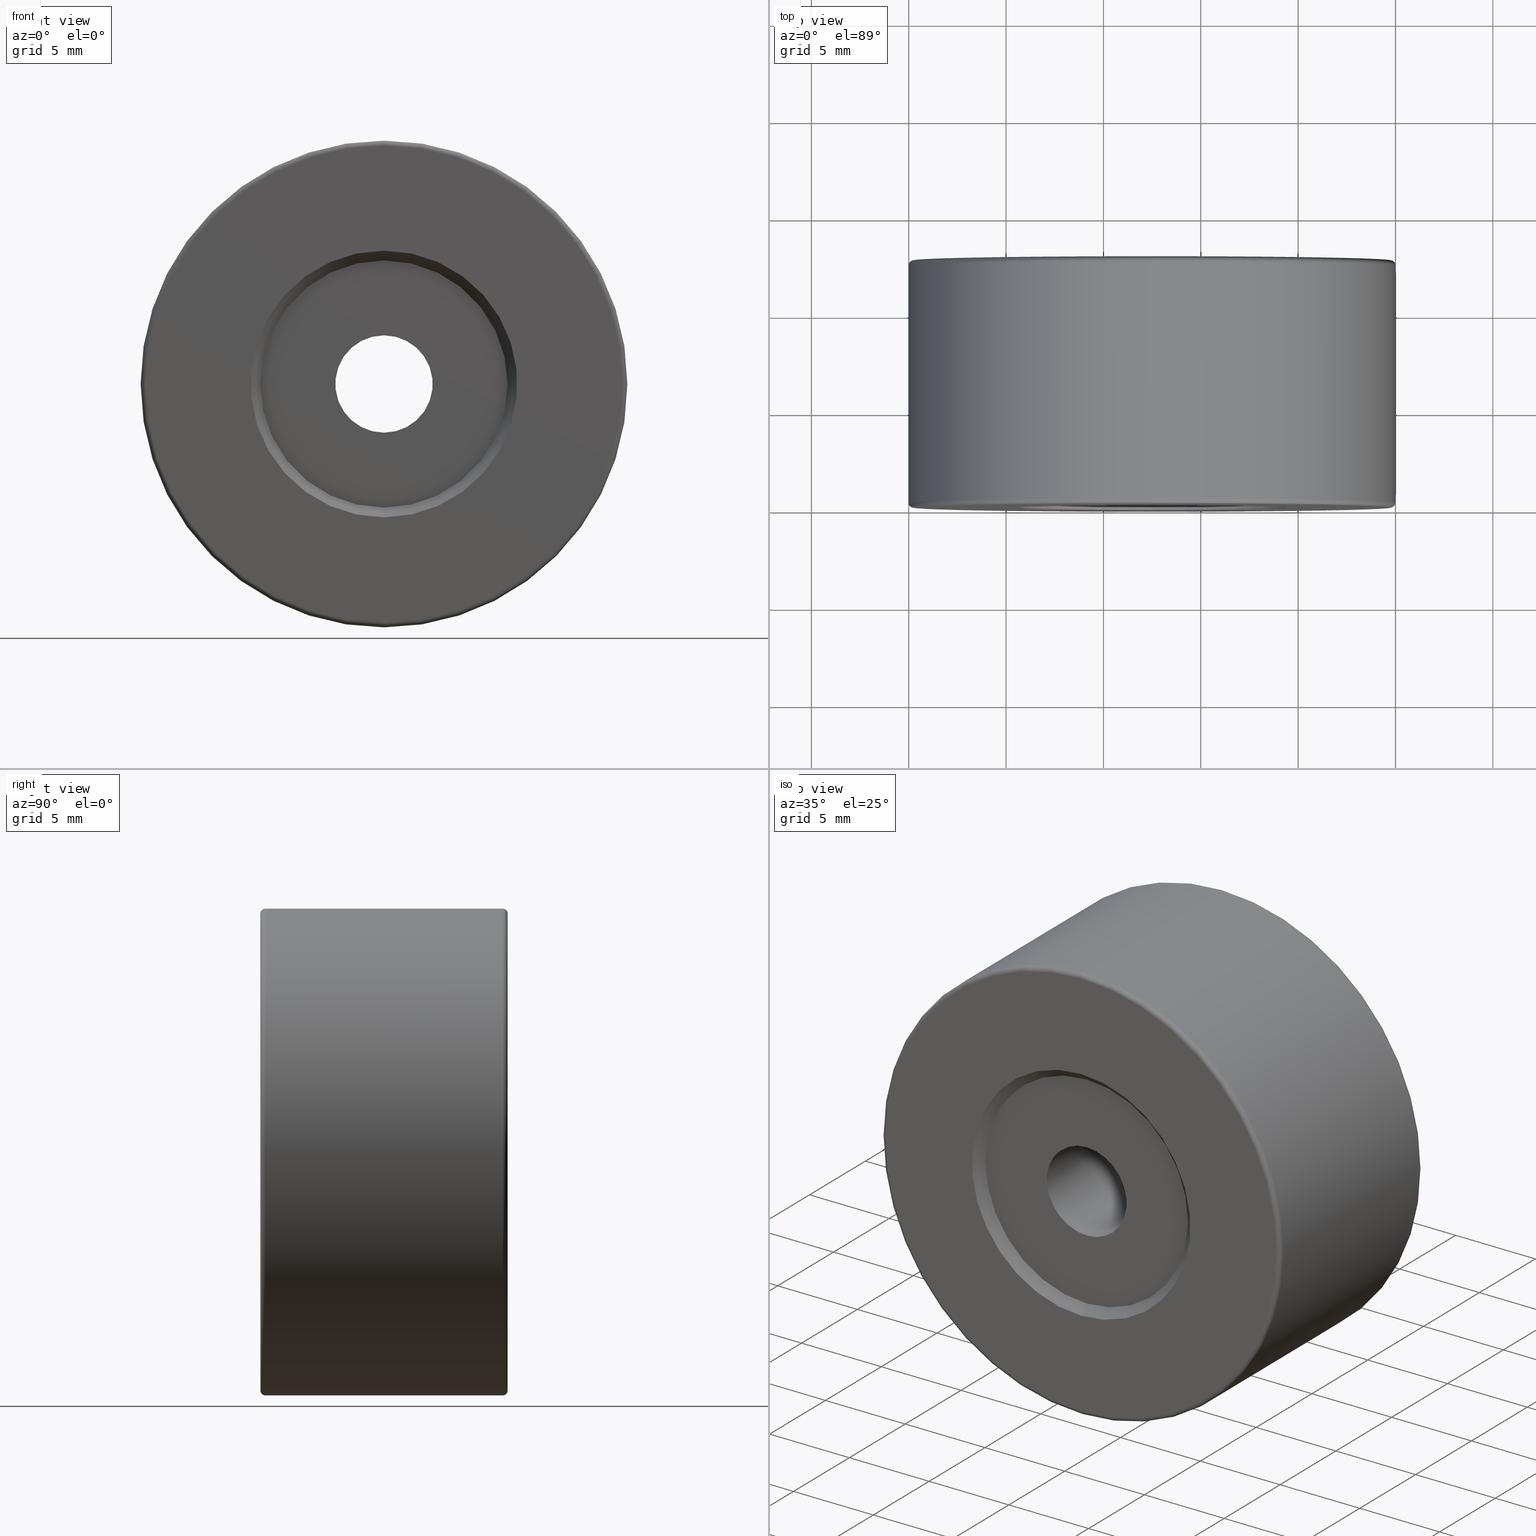
[diagram: canonical four-view strip — front | top / right | iso, engineering-drawing reading convention]
A machine part, canonical four-view strip (front | top / right | iso — engineering-drawing reading convention). The complete STEP part file that produces these views, byte-faithful:
ISO-10303-21;
HEADER;
FILE_DESCRIPTION (( 'STEP AP203' ),
    '1' );
FILE_NAME ('1.4.2.29_ZGH-25-0.5.STEP',
    '2022-04-14T00:09:37',
    ( '' ),
    ( '' ),
    'SwSTEP 2.0',
    'SolidWorks 2021',
    '' );
FILE_SCHEMA (( 'CONFIG_CONTROL_DESIGN' ));
ENDSEC;

DATA;
#1 = ORIENTED_EDGE ( 'NONE', *, *, #139, .T. ) ;
#2 = VERTEX_POINT ( 'NONE', #131 ) ;
#3 = ORIENTED_EDGE ( 'NONE', *, *, #251, .T. ) ;
#4 = DATE_AND_TIME ( #193, #574 ) ;
#5 = ORIENTED_EDGE ( 'NONE', *, *, #81, .T. ) ;
#6 = PERSON_AND_ORGANIZATION_ROLE ( 'classification_officer' ) ;
#7 = CIRCLE ( 'NONE', #351, 1.649999999999998579 ) ;
#8 = EDGE_CURVE ( 'NONE', #413, #174, #272, .T. ) ;
#9 = ORIENTED_EDGE ( 'NONE', *, *, #156, .F. ) ;
#10 = DIRECTION ( 'NONE',  ( 0.0000000000000000000, 0.0000000000000000000, 1.000000000000000000 ) ) ;
#11 = CARTESIAN_POINT ( 'NONE',  ( -22.50520183104453409, 7.748252184769388151, 56.85000000000000853 ) ) ;
#12 = UNCERTAINTY_MEASURE_WITH_UNIT (LENGTH_MEASURE( 1.000000000000000082E-05 ), #296, 'distance_accuracy_value', 'NONE');
#13 = DIRECTION ( 'NONE',  ( 0.0000000000000000000, 1.000000000000000000, 0.0000000000000000000 ) ) ;
#14 = DIRECTION ( 'NONE',  ( 0.0000000000000000000, 0.0000000000000000000, 1.000000000000000000 ) ) ;
#15 = CARTESIAN_POINT ( 'NONE',  ( -22.50520183104453409, -4.451747815230611138, 50.00000000000000000 ) ) ;
#16 = CIRCLE ( 'NONE', #318, 2.499999999999995115 ) ;
#17 = CIRCLE ( 'NONE', #402, 6.850000000000008527 ) ;
#18 = EDGE_CURVE ( 'NONE', #269, #138, #393, .T. ) ;
#19 = DIRECTION ( 'NONE',  ( 0.0000000000000000000, 0.0000000000000000000, 1.000000000000000000 ) ) ;
#20 = AXIS2_PLACEMENT_3D ( 'NONE', #514, #58, #279 ) ;
#21 = LINE ( 'NONE', #56, #271 ) ;
#22 = ORIENTED_EDGE ( 'NONE', *, *, #513, .F. ) ;
#23 = DIRECTION ( 'NONE',  ( -0.0000000000000000000, -1.000000000000000000, -0.0000000000000000000 ) ) ;
#24 = CARTESIAN_POINT ( 'NONE',  ( -22.50520183104453409, 7.248252184769383710, 56.35000000000000142 ) ) ;
#25 = ADVANCED_FACE ( 'NONE', ( #126 ), #299, .F. ) ;
#26 = CC_DESIGN_APPROVAL ( #467, ( #163 ) ) ;
#27 = DIRECTION ( 'NONE',  ( 0.0000000000000000000, 0.0000000000000000000, 1.000000000000000000 ) ) ;
#28 = FACE_OUTER_BOUND ( 'NONE', #571, .T. ) ;
#29 = CARTESIAN_POINT ( 'NONE',  ( -22.50520183104453409, -4.951747815230611138, 50.00000000000000000 ) ) ;
#30 = ORIENTED_EDGE ( 'NONE', *, *, #8, .T. ) ;
#31 = CIRCLE ( 'NONE', #364, 6.850000000000008527 ) ;
#32 = DIRECTION ( 'NONE',  ( -0.0000000000000000000, -1.000000000000000000, -0.0000000000000000000 ) ) ;
#33 = VERTEX_POINT ( 'NONE', #228 ) ;
#34 = DIRECTION ( 'NONE',  ( -0.0000000000000000000, -1.000000000000000000, -0.0000000000000000000 ) ) ;
#35 = FACE_OUTER_BOUND ( 'NONE', #430, .T. ) ;
#36 = CARTESIAN_POINT ( 'NONE',  ( -22.50520183104453409, 7.748252184769388151, 48.35000000000000142 ) ) ;
#37 = AXIS2_PLACEMENT_3D ( 'NONE', #477, #76, #292 ) ;
#38 = DIRECTION ( 'NONE',  ( 0.0000000000000000000, 1.000000000000000000, 0.0000000000000000000 ) ) ;
#39 = DIRECTION ( 'NONE',  ( 0.0000000000000000000, -0.0000000000000000000, 1.000000000000000000 ) ) ;
#40 = EDGE_LOOP ( 'NONE', ( #100, #548, #45, #186 ) ) ;
#41 = APPLICATION_PROTOCOL_DEFINITION ( 'international standard', 'config_control_design', 1994, #194 ) ;
#42 = AXIS2_PLACEMENT_3D ( 'NONE', #171, #482, #39 ) ;
#43 = EDGE_LOOP ( 'NONE', ( #352, #1 ) ) ;
#44 = MECHANICAL_CONTEXT ( 'NONE', #194, 'mechanical' ) ;
#45 = ORIENTED_EDGE ( 'NONE', *, *, #115, .T. ) ;
#46 = EDGE_CURVE ( 'NONE', #51, #191, #80, .T. ) ;
#47 = EDGE_LOOP ( 'NONE', ( #313, #257, #322, #278 ) ) ;
#48 = AXIS2_PLACEMENT_3D ( 'NONE', #52, #196, #150 ) ;
#49 = CIRCLE ( 'NONE', #555, 6.850000000000008527 ) ;
#50 = PERSON_AND_ORGANIZATION_ROLE ( 'creator' ) ;
#51 = VERTEX_POINT ( 'NONE', #490 ) ;
#52 = CARTESIAN_POINT ( 'NONE',  ( -22.50520183104453409, -4.951747815230611138, 50.00000000000000000 ) ) ;
#53 = ADVANCED_FACE ( 'NONE', ( #267 ), #350, .T. ) ;
#54 = ORIENTED_EDGE ( 'NONE', *, *, #470, .T. ) ;
#55 = VERTEX_POINT ( 'NONE', #77 ) ;
#56 = CARTESIAN_POINT ( 'NONE',  ( -22.50520183104453409, 7.748252184769388151, 62.50000000000000000 ) ) ;
#57 = LOCAL_TIME ( 8, 9, 37.00000000000000000, #92 ) ;
#58 = DIRECTION ( 'NONE',  ( -0.0000000000000000000, -1.000000000000000000, -0.0000000000000000000 ) ) ;
#59 = LINE ( 'NONE', #202, #248 ) ;
#60 = DIRECTION ( 'NONE',  ( 0.0000000000000000000, 0.0000000000000000000, 1.000000000000000000 ) ) ;
#61 = DIRECTION ( 'NONE',  ( -0.0000000000000000000, -1.000000000000000000, -0.0000000000000000000 ) ) ;
#62 = CIRCLE ( 'NONE', #371, 0.2500000000000002220 ) ;
#63 = DIRECTION ( 'NONE',  ( 8.659560562354955045E-17, 0.7071067811865456854, -0.7071067811865493491 ) ) ;
#64 = AXIS2_PLACEMENT_3D ( 'NONE', #252, #516, #508 ) ;
#65 = AXIS2_PLACEMENT_3D ( 'NONE', #472, #473, #221 ) ;
#66 = ADVANCED_FACE ( 'NONE', ( #396 ), #573, .T. ) ;
#67 = DIRECTION ( 'NONE',  ( 1.000000000000000000, -0.0000000000000000000, 1.224646799147353207E-16 ) ) ;
#68 = ADVANCED_FACE ( 'NONE', ( #442, #35 ), #222, .T. ) ;
#69 = DIRECTION ( 'NONE',  ( -0.0000000000000000000, -1.000000000000000000, -0.0000000000000000000 ) ) ;
#70 = CIRCLE ( 'NONE', #48, 6.850000000000008527 ) ;
#71 = CIRCLE ( 'NONE', #329, 6.350000000000001421 ) ;
#72 = AXIS2_PLACEMENT_3D ( 'NONE', #337, #38, #395 ) ;
#73 = DIRECTION ( 'NONE',  ( -0.0000000000000000000, -1.000000000000000000, -0.0000000000000000000 ) ) ;
#74 = ORIENTED_EDGE ( 'NONE', *, *, #551, .F. ) ;
#75 = CARTESIAN_POINT ( 'NONE',  ( -22.50520183104453409, 7.248252184769387263, 48.35000000000000142 ) ) ;
#76 = DIRECTION ( 'NONE',  ( -0.0000000000000000000, 1.000000000000000000, -0.0000000000000000000 ) ) ;
#77 = CARTESIAN_POINT ( 'NONE',  ( -22.50520183104453409, 7.248252184769387263, 56.35000000000000142 ) ) ;
#78 = SHELL_BASED_SURFACE_MODEL ( 'NONE', ( #401 ) );
#79 = EDGE_LOOP ( 'NONE', ( #144, #453 ) ) ;
#80 = LINE ( 'NONE', #36, #455 ) ;
#81 = EDGE_CURVE ( 'NONE', #213, #404, #529, .T. ) ;
#82 = DIRECTION ( 'NONE',  ( 0.0000000000000000000, 1.000000000000000000, 0.0000000000000000000 ) ) ;
#83 = DIRECTION ( 'NONE',  ( 0.0000000000000000000, 0.0000000000000000000, -1.000000000000000000 ) ) ;
#84 = ORIENTED_EDGE ( 'NONE', *, *, #139, .F. ) ;
#85 = AXIS2_PLACEMENT_3D ( 'NONE', #441, #73, #253 ) ;
#86 = CALENDAR_DATE ( 2022, 14, 4 ) ;
#87 = CYLINDRICAL_SURFACE ( 'NONE', #397, 1.649999999999998579 ) ;
#88 = ORIENTED_EDGE ( 'NONE', *, *, #354, .F. ) ;
#89 = PERSON_AND_ORGANIZATION_ROLE ( 'design_supplier' ) ;
#90 = VERTEX_POINT ( 'NONE', #177 ) ;
#91 = ORIENTED_EDGE ( 'NONE', *, *, #245, .T. ) ;
#92 = COORDINATED_UNIVERSAL_TIME_OFFSET ( 8, 0, .AHEAD. ) ;
#93 = CALENDAR_DATE ( 2022, 14, 4 ) ;
#94 = CC_DESIGN_PERSON_AND_ORGANIZATION_ASSIGNMENT ( #368, #89, ( #446 ) ) ;
#95 = ORIENTED_EDGE ( 'NONE', *, *, #407, .F. ) ;
#96 = ORIENTED_EDGE ( 'NONE', *, *, #513, .T. ) ;
#97 = VECTOR ( 'NONE', #63, 1000.000000000000000 ) ;
#98 = AXIS2_PLACEMENT_3D ( 'NONE', #301, #496, #487 ) ;
#99 = TOROIDAL_SURFACE ( 'NONE', #175, 12.25000000000000000, 0.2500000000000000000 ) ;
#100 = ORIENTED_EDGE ( 'NONE', *, *, #530, .T. ) ;
#101 = ADVANCED_FACE ( 'NONE', ( #306 ), #128, .F. ) ;
#102 = ORIENTED_EDGE ( 'NONE', *, *, #251, .F. ) ;
#103 = AXIS2_PLACEMENT_3D ( 'NONE', #383, #420, #158 ) ;
#104 = PLANE ( 'NONE',  #349 ) ;
#105 = DIRECTION ( 'NONE',  ( -0.0000000000000000000, -1.000000000000000000, -0.0000000000000000000 ) ) ;
#106 = DIRECTION ( 'NONE',  ( 0.0000000000000000000, 0.0000000000000000000, -1.000000000000000000 ) ) ;
#107 = CIRCLE ( 'NONE', #274, 1.649999999999998579 ) ;
#108 = CARTESIAN_POINT ( 'NONE',  ( -22.50520183104453409, -4.451747815230611138, 47.50000000000000711 ) ) ;
#109 = ADVANCED_FACE ( 'NONE', ( #303 ), #399, .F. ) ;
#110 = AXIS2_PLACEMENT_3D ( 'NONE', #330, #463, #380 ) ;
#111 = PRODUCT_DEFINITION_SHAPE ( 'NONE', 'NONE',  #118 ) ;
#112 = DIRECTION ( 'NONE',  ( 0.0000000000000000000, -0.7071067811865493491, -0.7071067811865456854 ) ) ;
#113 = DIRECTION ( 'NONE',  ( 0.0000000000000000000, 0.0000000000000000000, -1.000000000000000000 ) ) ;
#114 = CC_DESIGN_APPROVAL ( #342, ( #118 ) ) ;
#115 = EDGE_CURVE ( 'NONE', #136, #180, #382, .T. ) ;
#116 = CARTESIAN_POINT ( 'NONE',  ( -22.50520183104453409, 7.498252184769387263, 37.75000000000000711 ) ) ;
#117 = ORIENTED_EDGE ( 'NONE', *, *, #340, .F. ) ;
#118 = PRODUCT_DEFINITION ( 'δ֪', '', #446, #324 ) ;
#119 = DIRECTION ( 'NONE',  ( 0.0000000000000000000, 0.0000000000000000000, 1.000000000000000000 ) ) ;
#120 = DIRECTION ( 'NONE',  ( 0.0000000000000000000, 0.7071067811865456854, 0.7071067811865493491 ) ) ;
#121 = CIRCLE ( 'NONE', #103, 2.499999999999995115 ) ;
#122 = ORIENTED_EDGE ( 'NONE', *, *, #46, .T. ) ;
#123 = AXIS2_PLACEMENT_3D ( 'NONE', #289, #258, #579 ) ;
#124 = CIRCLE ( 'NONE', #204, 0.2500000000000002220 ) ;
#125 = AXIS2_PLACEMENT_3D ( 'NONE', #346, #82, #119 ) ;
#126 = FACE_OUTER_BOUND ( 'NONE', #185, .T. ) ;
#127 = DIRECTION ( 'NONE',  ( 0.0000000000000000000, 0.0000000000000000000, 1.000000000000000000 ) ) ;
#128 = CYLINDRICAL_SURFACE ( 'NONE', #214, 2.499999999999995115 ) ;
#129 = EDGE_CURVE ( 'NONE', #235, #51, #484, .T. ) ;
#130 = ORIENTED_EDGE ( 'NONE', *, *, #181, .F. ) ;
#131 = CARTESIAN_POINT ( 'NONE',  ( -22.50520183104453409, 7.498252184769387263, 62.50000000000000000 ) ) ;
#132 = MANIFOLD_SURFACE_SHAPE_REPRESENTATION ( '1.4.2.29_ZGH-25-0.5', ( #78, #188 ), #288 ) ;
#133 = FACE_BOUND ( 'NONE', #43, .T. ) ;
#134 = CIRCLE ( 'NONE', #110, 0.2500000000000002220 ) ;
#135 = DIRECTION ( 'NONE',  ( 0.0000000000000000000, 0.0000000000000000000, 1.000000000000000000 ) ) ;
#136 = VERTEX_POINT ( 'NONE', #201 ) ;
#137 = DIRECTION ( 'NONE',  ( 1.000000000000000000, 0.0000000000000000000, 0.0000000000000000000 ) ) ;
#138 = VERTEX_POINT ( 'NONE', #153 ) ;
#139 = EDGE_CURVE ( 'NONE', #190, #357, #31, .T. ) ;
#140 = ORIENTED_EDGE ( 'NONE', *, *, #451, .F. ) ;
#141 = PERSON_AND_ORGANIZATION ( #239, #367 ) ;
#142 = EDGE_CURVE ( 'NONE', #90, #136, #134, .T. ) ;
#143 = PERSON_AND_ORGANIZATION ( #239, #367 ) ;
#144 = ORIENTED_EDGE ( 'NONE', *, *, #547, .T. ) ;
#145 = ORIENTED_EDGE ( 'NONE', *, *, #492, .F. ) ;
#146 = AXIS2_PLACEMENT_3D ( 'NONE', #305, #215, #408 ) ;
#147 = AXIS2_PLACEMENT_3D ( 'NONE', #170, #481, #127 ) ;
#148 = COORDINATED_UNIVERSAL_TIME_OFFSET ( 8, 0, .AHEAD. ) ;
#149 = EDGE_LOOP ( 'NONE', ( #198, #122, #456, #95 ) ) ;
#150 = DIRECTION ( 'NONE',  ( 0.0000000000000000000, 0.0000000000000000000, 1.000000000000000000 ) ) ;
#151 = APPROVAL_ROLE ( '' ) ;
#152 = ORIENTED_EDGE ( 'NONE', *, *, #237, .F. ) ;
#153 = CARTESIAN_POINT ( 'NONE',  ( -22.50520183104453409, -4.951747815230611138, 56.85000000000000853 ) ) ;
#154 = CARTESIAN_POINT ( 'NONE',  ( -22.50520183104453409, -4.451747815230611138, 50.00000000000000000 ) ) ;
#155 = TOROIDAL_SURFACE ( 'NONE', #125, 12.25000000000000000, 0.2500000000000000000 ) ;
#156 = EDGE_CURVE ( 'NONE', #55, #357, #336, .T. ) ;
#157 = DIRECTION ( 'NONE',  ( -0.0000000000000000000, -1.000000000000000000, -0.0000000000000000000 ) ) ;
#158 = DIRECTION ( 'NONE',  ( 0.0000000000000000000, 0.0000000000000000000, -1.000000000000000000 ) ) ;
#159 = EDGE_CURVE ( 'NONE', #51, #235, #414, .T. ) ;
#160 = FACE_BOUND ( 'NONE', #79, .T. ) ;
#161 = CIRCLE ( 'NONE', #264, 2.499999999999995115 ) ;
#162 = DIRECTION ( 'NONE',  ( 1.000000000000000000, -0.0000000000000000000, 1.224646799147353207E-16 ) ) ;
#163 = SECURITY_CLASSIFICATION ( '', '', #241 ) ;
#164 = DIRECTION ( 'NONE',  ( 0.0000000000000000000, 1.000000000000000000, 0.0000000000000000000 ) ) ;
#165 = CARTESIAN_POINT ( 'NONE',  ( -22.50520183104453409, 7.498252184769387263, 50.00000000000000000 ) ) ;
#166 = VERTEX_POINT ( 'NONE', #255 ) ;
#167 = FACE_OUTER_BOUND ( 'NONE', #544, .T. ) ;
#168 = DIRECTION ( 'NONE',  ( 0.0000000000000000000, 0.0000000000000000000, 1.000000000000000000 ) ) ;
#169 = EDGE_LOOP ( 'NONE', ( #192, #275, #524, #130 ) ) ;
#170 = CARTESIAN_POINT ( 'NONE',  ( -22.50520183104453409, 7.248252184769387263, 50.00000000000000000 ) ) ;
#171 = CARTESIAN_POINT ( 'NONE',  ( -22.50520183104453409, 7.248252184769387263, 50.00000000000000000 ) ) ;
#172 = ADVANCED_FACE ( 'NONE', ( #436 ), #375, .F. ) ;
#173 = AXIS2_PLACEMENT_3D ( 'NONE', #182, #358, #347 ) ;
#174 = VERTEX_POINT ( 'NONE', #344 ) ;
#175 = AXIS2_PLACEMENT_3D ( 'NONE', #165, #211, #217 ) ;
#176 = CARTESIAN_POINT ( 'NONE',  ( -22.50520183104453409, 7.748252184769388151, 50.00000000000000000 ) ) ;
#177 = CARTESIAN_POINT ( 'NONE',  ( -22.50520183104453409, -4.951747815230611138, 62.25000000000000000 ) ) ;
#178 = EDGE_CURVE ( 'NONE', #138, #499, #70, .T. ) ;
#179 = APPROVAL_ROLE ( '' ) ;
#180 = VERTEX_POINT ( 'NONE', #326 ) ;
#181 = EDGE_CURVE ( 'NONE', #2, #174, #124, .T. ) ;
#182 = CARTESIAN_POINT ( 'NONE',  ( -22.50520183104453409, -4.701747815230611138, 50.00000000000000000 ) ) ;
#183 = APPROVAL_STATUS ( 'not_yet_approved' ) ;
#184 = SHAPE_DEFINITION_REPRESENTATION ( #111, #132 ) ;
#185 = EDGE_LOOP ( 'NONE', ( #450, #209, #365, #84 ) ) ;
#186 = ORIENTED_EDGE ( 'NONE', *, *, #377, .F. ) ;
#187 = PRODUCT_RELATED_PRODUCT_CATEGORY ( 'detail', '', ( #411 ) ) ;
#188 = AXIS2_PLACEMENT_3D ( 'NONE', #405, #314, #137 ) ;
#189 = PERSON_AND_ORGANIZATION_ROLE ( 'creator' ) ;
#190 = VERTEX_POINT ( 'NONE', #480 ) ;
#191 = VERTEX_POINT ( 'NONE', #75 ) ;
#192 = ORIENTED_EDGE ( 'NONE', *, *, #530, .F. ) ;
#193 = CALENDAR_DATE ( 2022, 14, 4 ) ;
#194 = APPLICATION_CONTEXT ( 'configuration controlled 3d designs of mechanical parts and assemblies' ) ;
#195 = ORIENTED_EDGE ( 'NONE', *, *, #551, .T. ) ;
#196 = DIRECTION ( 'NONE',  ( 0.0000000000000000000, 1.000000000000000000, 0.0000000000000000000 ) ) ;
#197 = APPROVAL_PERSON_ORGANIZATION ( #141, #520, #179 ) ;
#198 = ORIENTED_EDGE ( 'NONE', *, *, #129, .T. ) ;
#199 = LINE ( 'NONE', #370, #502 ) ;
#200 = EDGE_CURVE ( 'NONE', #55, #33, #270, .T. ) ;
#201 = CARTESIAN_POINT ( 'NONE',  ( -22.50520183104453409, -4.701747815230611138, 62.50000000000000000 ) ) ;
#202 = CARTESIAN_POINT ( 'NONE',  ( -22.50520183104453409, -4.951747815230611138, 43.14999999999999147 ) ) ;
#203 = ADVANCED_FACE ( 'NONE', ( #385 ), #433, .F. ) ;
#204 = AXIS2_PLACEMENT_3D ( 'NONE', #507, #460, #10 ) ;
#205 = CIRCLE ( 'NONE', #425, 0.2500000000000002220 ) ;
#206 = DIRECTION ( 'NONE',  ( -0.0000000000000000000, 1.000000000000000000, -0.0000000000000000000 ) ) ;
#207 = FACE_OUTER_BOUND ( 'NONE', #169, .T. ) ;
#208 = DIRECTION ( 'NONE',  ( 0.0000000000000000000, -1.000000000000000000, 0.0000000000000000000 ) ) ;
#209 = ORIENTED_EDGE ( 'NONE', *, *, #200, .F. ) ;
#210 = CARTESIAN_POINT ( 'NONE',  ( -22.50520183104453409, -4.951747815230611138, 50.00000000000000000 ) ) ;
#211 = DIRECTION ( 'NONE',  ( 0.0000000000000000000, 1.000000000000000000, 0.0000000000000000000 ) ) ;
#212 = CARTESIAN_POINT ( 'NONE',  ( -22.50520183104453409, 7.748252184769388151, 50.00000000000000000 ) ) ;
#213 = VERTEX_POINT ( 'NONE', #517 ) ;
#214 = AXIS2_PLACEMENT_3D ( 'NONE', #488, #32, #83 ) ;
#215 = DIRECTION ( 'NONE',  ( 0.0000000000000000000, 1.000000000000000000, 0.0000000000000000000 ) ) ;
#216 = ADVANCED_FACE ( 'NONE', ( #294, #476 ), #394, .T. ) ;
#217 = DIRECTION ( 'NONE',  ( 0.0000000000000000000, 0.0000000000000000000, 1.000000000000000000 ) ) ;
#218 = CARTESIAN_POINT ( 'NONE',  ( -22.50520183104453409, -4.951747815230611138, 50.00000000000000000 ) ) ;
#219 = DIRECTION ( 'NONE',  ( 0.0000000000000000000, 1.000000000000000000, 0.0000000000000000000 ) ) ;
#220 = ADVANCED_FACE ( 'NONE', ( #230 ), #87, .F. ) ;
#221 = DIRECTION ( 'NONE',  ( 0.0000000000000000000, -0.0000000000000000000, 1.000000000000000000 ) ) ;
#222 = PLANE ( 'NONE',  #42 ) ;
#223 = EDGE_LOOP ( 'NONE', ( #273, #485, #360, #96 ) ) ;
#224 = AXIS2_PLACEMENT_3D ( 'NONE', #176, #23, #444 ) ;
#225 = APPLICATION_CONTEXT ( 'configuration controlled 3d designs of mechanical parts and assemblies' ) ;
#226 = DIRECTION ( 'NONE',  ( 0.0000000000000000000, 1.000000000000000000, 0.0000000000000000000 ) ) ;
#227 = VERTEX_POINT ( 'NONE', #298 ) ;
#228 = CARTESIAN_POINT ( 'NONE',  ( -22.50520183104453409, 7.248252184769387263, 43.64999999999999858 ) ) ;
#229 = DATE_AND_TIME ( #86, #57 ) ;
#230 = FACE_OUTER_BOUND ( 'NONE', #149, .T. ) ;
#231 = ORIENTED_EDGE ( 'NONE', *, *, #327, .F. ) ;
#232 = PERSON_AND_ORGANIZATION ( #239, #367 ) ;
#233 = ORIENTED_EDGE ( 'NONE', *, *, #458, .F. ) ;
#234 = CONICAL_SURFACE ( 'NONE', #64, 6.850000000000008527, 0.7853981633974457255 ) ;
#235 = VERTEX_POINT ( 'NONE', #291 ) ;
#236 = ORIENTED_EDGE ( 'NONE', *, *, #181, .T. ) ;
#237 = EDGE_CURVE ( 'NONE', #304, #404, #161, .T. ) ;
#238 = CALENDAR_DATE ( 2022, 14, 4 ) ;
#239 = PERSON ( 'δָ��', 'δָ��', 'δָ��', ('δָ��'), ('δָ��'), ('δָ��') ) ;
#240 = EDGE_LOOP ( 'NONE', ( #91, #54 ) ) ;
#241 = SECURITY_CLASSIFICATION_LEVEL ( 'unclassified' ) ;
#242 = EDGE_LOOP ( 'NONE', ( #22, #536 ) ) ;
#243 = LOCAL_TIME ( 8, 9, 37.00000000000000000, #542 ) ;
#244 = CARTESIAN_POINT ( 'NONE',  ( -22.50520183104453409, 7.748252184769388151, 50.00000000000000000 ) ) ;
#245 = EDGE_CURVE ( 'NONE', #90, #339, #374, .T. ) ;
#246 = DIRECTION ( 'NONE',  ( 0.0000000000000000000, 1.000000000000000000, 0.0000000000000000000 ) ) ;
#247 = DIRECTION ( 'NONE',  ( -0.0000000000000000000, 1.000000000000000000, -0.0000000000000000000 ) ) ;
#248 = VECTOR ( 'NONE', #112, 1000.000000000000000 ) ;
#249 = DIRECTION ( 'NONE',  ( -0.0000000000000000000, 1.000000000000000000, -0.0000000000000000000 ) ) ;
#250 = LOCAL_TIME ( 8, 9, 37.00000000000000000, #362 ) ;
#251 = EDGE_CURVE ( 'NONE', #339, #180, #62, .T. ) ;
#252 = CARTESIAN_POINT ( 'NONE',  ( -22.50520183104453409, -4.951747815230611138, 50.00000000000000000 ) ) ;
#253 = DIRECTION ( 'NONE',  ( 0.0000000000000000000, 0.0000000000000000000, 1.000000000000000000 ) ) ;
#254 = CARTESIAN_POINT ( 'NONE',  ( -22.50520183104453409, 2.048252184769387974, 50.00000000000000000 ) ) ;
#255 = CARTESIAN_POINT ( 'NONE',  ( -22.50520183104453409, 7.248252184769387263, 51.64999999999999858 ) ) ;
#256 = EDGE_CURVE ( 'NONE', #213, #227, #121, .T. ) ;
#257 = ORIENTED_EDGE ( 'NONE', *, *, #415, .T. ) ;
#258 = DIRECTION ( 'NONE',  ( -0.0000000000000000000, -1.000000000000000000, -0.0000000000000000000 ) ) ;
#259 = PLANE ( 'NONE',  #65 ) ;
#260 = DIRECTION ( 'NONE',  ( -0.0000000000000000000, -1.000000000000000000, -0.0000000000000000000 ) ) ;
#261 = ORIENTED_EDGE ( 'NONE', *, *, #8, .F. ) ;
#262 =( NAMED_UNIT ( * ) SI_UNIT ( $, .STERADIAN. ) SOLID_ANGLE_UNIT ( ) );
#263 = DIRECTION ( 'NONE',  ( 0.0000000000000000000, 1.000000000000000000, 0.0000000000000000000 ) ) ;
#264 = AXIS2_PLACEMENT_3D ( 'NONE', #391, #300, #478 ) ;
#265 = ORIENTED_EDGE ( 'NONE', *, *, #377, .T. ) ;
#266 = CC_DESIGN_APPROVAL ( #520, ( #446 ) ) ;
#267 = FACE_OUTER_BOUND ( 'NONE', #501, .T. ) ;
#268 = ORIENTED_EDGE ( 'NONE', *, *, #553, .F. ) ;
#269 = VERTEX_POINT ( 'NONE', #428 ) ;
#270 = CIRCLE ( 'NONE', #424, 6.350000000000001421 ) ;
#271 = VECTOR ( 'NONE', #287, 1000.000000000000000 ) ;
#272 = CIRCLE ( 'NONE', #146, 12.24999999999999645 ) ;
#273 = ORIENTED_EDGE ( 'NONE', *, *, #46, .F. ) ;
#274 = AXIS2_PLACEMENT_3D ( 'NONE', #522, #226, #528 ) ;
#275 = ORIENTED_EDGE ( 'NONE', *, *, #451, .T. ) ;
#276 = CC_DESIGN_PERSON_AND_ORGANIZATION_ASSIGNMENT ( #500, #534, ( #411 ) ) ;
#277 = PERSON_AND_ORGANIZATION ( #239, #367 ) ;
#278 = ORIENTED_EDGE ( 'NONE', *, *, #178, .F. ) ;
#279 = DIRECTION ( 'NONE',  ( 0.0000000000000000000, 0.0000000000000000000, -1.000000000000000000 ) ) ;
#280 = ADVANCED_FACE ( 'NONE', ( #518 ), #234, .F. ) ;
#281 = DIRECTION ( 'NONE',  ( 0.0000000000000000000, 1.000000000000000000, 0.0000000000000000000 ) ) ;
#282 = CARTESIAN_POINT ( 'NONE',  ( -22.50520183104453409, 7.248252184769383710, 43.64999999999999858 ) ) ;
#283 = ADVANCED_FACE ( 'NONE', ( #373 ), #429, .T. ) ;
#284 = DIRECTION ( 'NONE',  ( -0.0000000000000000000, -1.000000000000000000, -0.0000000000000000000 ) ) ;
#285 = AXIS2_PLACEMENT_3D ( 'NONE', #338, #13, #60 ) ;
#286 = CYLINDRICAL_SURFACE ( 'NONE', #410, 1.649999999999998579 ) ;
#287 = DIRECTION ( 'NONE',  ( -0.0000000000000000000, -1.000000000000000000, -0.0000000000000000000 ) ) ;
#288 =( GEOMETRIC_REPRESENTATION_CONTEXT ( 3 ) GLOBAL_UNCERTAINTY_ASSIGNED_CONTEXT ( ( #12 ) ) GLOBAL_UNIT_ASSIGNED_CONTEXT ( ( #296, #302, #262 ) ) REPRESENTATION_CONTEXT ( 'NONE', 'WORKASPACE' ) );
#289 = CARTESIAN_POINT ( 'NONE',  ( -22.50520183104453409, -4.951747815230611138, 50.00000000000000000 ) ) ;
#290 = CARTESIAN_POINT ( 'NONE',  ( -22.50520183104453409, 7.248252184769387263, 50.00000000000000000 ) ) ;
#291 = CARTESIAN_POINT ( 'NONE',  ( -22.50520183104453409, 2.558983710942815737, 51.64999999999999858 ) ) ;
#292 = DIRECTION ( 'NONE',  ( 0.0000000000000000000, 0.0000000000000000000, 1.000000000000000000 ) ) ;
#293 = EDGE_CURVE ( 'NONE', #2, #136, #21, .T. ) ;
#294 = FACE_BOUND ( 'NONE', #439, .T. ) ;
#295 = AXIS2_PLACEMENT_3D ( 'NONE', #483, #535, #135 ) ;
#296 =( LENGTH_UNIT ( ) NAMED_UNIT ( * ) SI_UNIT ( .MILLI., .METRE. ) );
#297 = VECTOR ( 'NONE', #61, 1000.000000000000000 ) ;
#298 = CARTESIAN_POINT ( 'NONE',  ( -22.50520183104453409, 2.048252184769387974, 47.50000000000000711 ) ) ;
#299 = CONICAL_SURFACE ( 'NONE', #98, 6.350000000000001421, 0.7853981633974509435 ) ;
#300 = DIRECTION ( 'NONE',  ( 0.0000000000000000000, -1.000000000000000000, 0.0000000000000000000 ) ) ;
#301 = CARTESIAN_POINT ( 'NONE',  ( -22.50520183104453409, 7.248252184769383710, 50.00000000000000000 ) ) ;
#302 =( NAMED_UNIT ( * ) PLANE_ANGLE_UNIT ( ) SI_UNIT ( $, .RADIAN. ) );
#303 = FACE_OUTER_BOUND ( 'NONE', #567, .T. ) ;
#304 = VERTEX_POINT ( 'NONE', #108 ) ;
#305 = CARTESIAN_POINT ( 'NONE',  ( -22.50520183104453409, 7.748252184769388151, 50.00000000000000000 ) ) ;
#306 = FACE_OUTER_BOUND ( 'NONE', #506, .T. ) ;
#307 = ORIENTED_EDGE ( 'NONE', *, *, #381, .T. ) ;
#308 = CC_DESIGN_PERSON_AND_ORGANIZATION_ASSIGNMENT ( #277, #6, ( #163 ) ) ;
#309 = APPLICATION_PROTOCOL_DEFINITION ( 'international standard', 'config_control_design', 1994, #225 ) ;
#310 = ORIENTED_EDGE ( 'NONE', *, *, #115, .F. ) ;
#311 = AXIS2_PLACEMENT_3D ( 'NONE', #254, #34, #398 ) ;
#312 = CALENDAR_DATE ( 2022, 14, 4 ) ;
#313 = ORIENTED_EDGE ( 'NONE', *, *, #18, .F. ) ;
#314 = DIRECTION ( 'NONE',  ( 0.0000000000000000000, 0.0000000000000000000, 1.000000000000000000 ) ) ;
#315 = EDGE_CURVE ( 'NONE', #33, #190, #333, .T. ) ;
#316 = ORIENTED_EDGE ( 'NONE', *, *, #245, .F. ) ;
#317 = APPROVAL_DATE_TIME ( #4, #520 ) ;
#318 = AXIS2_PLACEMENT_3D ( 'NONE', #154, #208, #471 ) ;
#319 = ORIENTED_EDGE ( 'NONE', *, *, #415, .F. ) ;
#320 = AXIS2_PLACEMENT_3D ( 'NONE', #569, #437, #386 ) ;
#321 = DATE_AND_TIME ( #93, #243 ) ;
#322 = ORIENTED_EDGE ( 'NONE', *, *, #400, .T. ) ;
#323 = CARTESIAN_POINT ( 'NONE',  ( -22.50520183104453409, 7.748252184769388151, 50.00000000000000000 ) ) ;
#324 = DESIGN_CONTEXT ( 'detailed design', #225, 'design' ) ;
#325 = EDGE_LOOP ( 'NONE', ( #412, #459, #117, #9 ) ) ;
#326 = CARTESIAN_POINT ( 'NONE',  ( -22.50520183104453409, -4.701747815230611138, 37.50000000000000711 ) ) ;
#327 = EDGE_CURVE ( 'NONE', #404, #304, #16, .T. ) ;
#328 = CARTESIAN_POINT ( 'NONE',  ( -22.50520183104453409, -4.951747815230611138, 50.00000000000000000 ) ) ;
#329 = AXIS2_PLACEMENT_3D ( 'NONE', #15, #206, #378 ) ;
#330 = CARTESIAN_POINT ( 'NONE',  ( -22.50520183104453409, -4.701747815230611138, 62.25000000000000000 ) ) ;
#331 = LINE ( 'NONE', #466, #572 ) ;
#332 = DIRECTION ( 'NONE',  ( 0.0000000000000000000, 0.0000000000000000000, -1.000000000000000000 ) ) ;
#333 = LINE ( 'NONE', #282, #97 ) ;
#334 = ADVANCED_FACE ( 'NONE', ( #558, #160 ), #104, .F. ) ;
#335 = CARTESIAN_POINT ( 'NONE',  ( -22.50520183104453409, -4.701747815230611138, 37.75000000000000711 ) ) ;
#336 = LINE ( 'NONE', #24, #515 ) ;
#337 = CARTESIAN_POINT ( 'NONE',  ( -22.50520183104453409, -4.701747815230611138, 50.00000000000000000 ) ) ;
#338 = CARTESIAN_POINT ( 'NONE',  ( -22.50520183104453409, -4.701747815230611138, 50.00000000000000000 ) ) ;
#339 = VERTEX_POINT ( 'NONE', #461 ) ;
#340 = EDGE_CURVE ( 'NONE', #357, #190, #49, .T. ) ;
#341 = CARTESIAN_POINT ( 'NONE',  ( -22.50520183104453409, -4.951747815230611138, 43.14999999999999147 ) ) ;
#342 = APPROVAL ( #183, 'δָ��' ) ;
#343 = DIRECTION ( 'NONE',  ( 0.0000000000000000000, 0.0000000000000000000, 1.000000000000000000 ) ) ;
#344 = CARTESIAN_POINT ( 'NONE',  ( -22.50520183104453409, 7.748252184769388151, 62.25000000000000000 ) ) ;
#345 = ORIENTED_EDGE ( 'NONE', *, *, #492, .T. ) ;
#346 = CARTESIAN_POINT ( 'NONE',  ( -22.50520183104453409, 7.498252184769387263, 50.00000000000000000 ) ) ;
#347 = DIRECTION ( 'NONE',  ( 0.0000000000000000000, 0.0000000000000000000, 1.000000000000000000 ) ) ;
#348 = AXIS2_PLACEMENT_3D ( 'NONE', #29, #390, #566 ) ;
#349 = AXIS2_PLACEMENT_3D ( 'NONE', #328, #281, #512 ) ;
#350 = TOROIDAL_SURFACE ( 'NONE', #173, 12.25000000000000000, 0.2500000000000000000 ) ;
#351 = AXIS2_PLACEMENT_3D ( 'NONE', #290, #523, #389 ) ;
#352 = ORIENTED_EDGE ( 'NONE', *, *, #340, .T. ) ;
#353 = CARTESIAN_POINT ( 'NONE',  ( -22.50520183104453409, 7.498252184769387263, 37.50000000000000711 ) ) ;
#354 = EDGE_CURVE ( 'NONE', #227, #304, #379, .T. ) ;
#355 = AXIS2_PLACEMENT_3D ( 'NONE', #388, #563, #474 ) ;
#356 = DIRECTION ( 'NONE',  ( -0.0000000000000000000, 1.000000000000000000, -0.0000000000000000000 ) ) ;
#357 = VERTEX_POINT ( 'NONE', #11 ) ;
#358 = DIRECTION ( 'NONE',  ( 0.0000000000000000000, 1.000000000000000000, 0.0000000000000000000 ) ) ;
#359 = PERSON_AND_ORGANIZATION ( #239, #367 ) ;
#360 = ORIENTED_EDGE ( 'NONE', *, *, #407, .T. ) ;
#361 = CIRCLE ( 'NONE', #72, 12.49999999999999645 ) ;
#362 = COORDINATED_UNIVERSAL_TIME_OFFSET ( 8, 0, .AHEAD. ) ;
#363 = ORIENTED_EDGE ( 'NONE', *, *, #327, .T. ) ;
#364 = AXIS2_PLACEMENT_3D ( 'NONE', #509, #105, #372 ) ;
#365 = ORIENTED_EDGE ( 'NONE', *, *, #156, .T. ) ;
#366 = EDGE_LOOP ( 'NONE', ( #307, #30 ) ) ;
#367 = ORGANIZATION ( 'δָ��', 'δָ��', '' ) ;
#368 = PERSON_AND_ORGANIZATION ( #239, #367 ) ;
#369 = VERTEX_POINT ( 'NONE', #557 ) ;
#370 = CARTESIAN_POINT ( 'NONE',  ( -22.50520183104453409, 7.748252184769388151, 37.50000000000000711 ) ) ;
#371 = AXIS2_PLACEMENT_3D ( 'NONE', #335, #67, #113 ) ;
#372 = DIRECTION ( 'NONE',  ( 0.0000000000000000000, 0.0000000000000000000, 1.000000000000000000 ) ) ;
#373 = FACE_OUTER_BOUND ( 'NONE', #40, .T. ) ;
#374 = CIRCLE ( 'NONE', #123, 12.24999999999999645 ) ;
#375 = CONICAL_SURFACE ( 'NONE', #348, 6.850000000000008527, 0.7853981633974457255 ) ;
#376 = VECTOR ( 'NONE', #526, 1000.000000000000000 ) ;
#377 = EDGE_CURVE ( 'NONE', #545, #180, #199, .T. ) ;
#378 = DIRECTION ( 'NONE',  ( 0.0000000000000000000, 0.0000000000000000000, 1.000000000000000000 ) ) ;
#379 = LINE ( 'NONE', #464, #297 ) ;
#380 = DIRECTION ( 'NONE',  ( 0.0000000000000000000, 0.0000000000000000000, 1.000000000000000000 ) ) ;
#381 = EDGE_CURVE ( 'NONE', #174, #413, #454, .T. ) ;
#382 = CIRCLE ( 'NONE', #285, 12.49999999999999645 ) ;
#383 = CARTESIAN_POINT ( 'NONE',  ( -22.50520183104453409, 2.048252184769387974, 50.00000000000000000 ) ) ;
#384 = ORIENTED_EDGE ( 'NONE', *, *, #470, .F. ) ;
#385 = FACE_OUTER_BOUND ( 'NONE', #325, .T. ) ;
#386 = DIRECTION ( 'NONE',  ( 0.0000000000000000000, 0.0000000000000000000, 1.000000000000000000 ) ) ;
#387 = LOCAL_TIME ( 8, 9, 37.00000000000000000, #148 ) ;
#388 = CARTESIAN_POINT ( 'NONE',  ( -22.50520183104453409, 2.558983710942815737, 50.00000000000000000 ) ) ;
#389 = DIRECTION ( 'NONE',  ( 0.0000000000000000000, 0.0000000000000000000, 1.000000000000000000 ) ) ;
#390 = DIRECTION ( 'NONE',  ( -0.0000000000000000000, -1.000000000000000000, -0.0000000000000000000 ) ) ;
#391 = CARTESIAN_POINT ( 'NONE',  ( -22.50520183104453409, -4.451747815230611138, 50.00000000000000000 ) ) ;
#392 = ORIENTED_EDGE ( 'NONE', *, *, #503, .T. ) ;
#393 = LINE ( 'NONE', #448, #376 ) ;
#394 = PLANE ( 'NONE',  #295 ) ;
#395 = DIRECTION ( 'NONE',  ( 0.0000000000000000000, 0.0000000000000000000, 1.000000000000000000 ) ) ;
#396 = FACE_OUTER_BOUND ( 'NONE', #452, .T. ) ;
#397 = AXIS2_PLACEMENT_3D ( 'NONE', #212, #438, #168 ) ;
#398 = DIRECTION ( 'NONE',  ( 0.0000000000000000000, 0.0000000000000000000, -1.000000000000000000 ) ) ;
#399 = CYLINDRICAL_SURFACE ( 'NONE', #543, 2.499999999999995115 ) ;
#400 = EDGE_CURVE ( 'NONE', #369, #499, #59, .T. ) ;
#401 = OPEN_SHELL ( 'NONE', ( #172, #101, #66, #283, #449, #203, #220, #422, #68, #25, #525, #568, #537, #53, #334, #109, #216, #280 ) ) ;
#402 = AXIS2_PLACEMENT_3D ( 'NONE', #210, #565, #532 ) ;
#403 = DIRECTION ( 'NONE',  ( 0.0000000000000000000, 0.0000000000000000000, -1.000000000000000000 ) ) ;
#404 = VERTEX_POINT ( 'NONE', #421 ) ;
#405 = CARTESIAN_POINT ( 'NONE',  ( 0.0000000000000000000, 0.0000000000000000000, 0.0000000000000000000 ) ) ;
#406 = EDGE_LOOP ( 'NONE', ( #233, #319 ) ) ;
#407 = EDGE_CURVE ( 'NONE', #235, #166, #331, .T. ) ;
#408 = DIRECTION ( 'NONE',  ( 0.0000000000000000000, 0.0000000000000000000, 1.000000000000000000 ) ) ;
#409 = APPROVAL_DATE_TIME ( #229, #342 ) ;
#410 = AXIS2_PLACEMENT_3D ( 'NONE', #468, #249, #19 ) ;
#411 = PRODUCT ( '1.4.2.29_ZGH-25-0.5', '1.4.2.29_ZGH-25-0.5', '', ( #44 ) ) ;
#412 = ORIENTED_EDGE ( 'NONE', *, *, #503, .F. ) ;
#413 = VERTEX_POINT ( 'NONE', #423 ) ;
#414 = CIRCLE ( 'NONE', #355, 1.649999999999998579 ) ;
#415 = EDGE_CURVE ( 'NONE', #269, #369, #71, .T. ) ;
#416 = ORIENTED_EDGE ( 'NONE', *, *, #200, .T. ) ;
#417 = PERSON_AND_ORGANIZATION ( #239, #367 ) ;
#418 = ORIENTED_EDGE ( 'NONE', *, *, #237, .T. ) ;
#419 = CIRCLE ( 'NONE', #426, 12.49999999999999645 ) ;
#420 = DIRECTION ( 'NONE',  ( -0.0000000000000000000, -1.000000000000000000, -0.0000000000000000000 ) ) ;
#421 = CARTESIAN_POINT ( 'NONE',  ( -22.50520183104453409, -4.451747815230611138, 52.50000000000000000 ) ) ;
#422 = ADVANCED_FACE ( 'NONE', ( #556 ), #286, .F. ) ;
#423 = CARTESIAN_POINT ( 'NONE',  ( -22.50520183104453409, 7.748252184769388151, 37.75000000000000711 ) ) ;
#424 = AXIS2_PLACEMENT_3D ( 'NONE', #440, #219, #27 ) ;
#425 = AXIS2_PLACEMENT_3D ( 'NONE', #116, #162, #403 ) ;
#426 = AXIS2_PLACEMENT_3D ( 'NONE', #562, #69, #343 ) ;
#427 = CC_DESIGN_DATE_AND_TIME_ASSIGNMENT ( #497, #541, ( #118 ) ) ;
#428 = CARTESIAN_POINT ( 'NONE',  ( -22.50520183104453409, -4.451747815230611138, 56.35000000000000142 ) ) ;
#429 = CYLINDRICAL_SURFACE ( 'NONE', #475, 12.49999999999999645 ) ;
#430 = EDGE_LOOP ( 'NONE', ( #416, #392 ) ) ;
#431 = CYLINDRICAL_SURFACE ( 'NONE', #224, 12.49999999999999645 ) ;
#432 = CC_DESIGN_PERSON_AND_ORGANIZATION_ASSIGNMENT ( #359, #189, ( #118 ) ) ;
#433 = CONICAL_SURFACE ( 'NONE', #519, 6.350000000000001421, 0.7853981633974509435 ) ;
#434 = CIRCLE ( 'NONE', #37, 6.350000000000001421 ) ;
#435 = FACE_OUTER_BOUND ( 'NONE', #366, .T. ) ;
#436 = FACE_OUTER_BOUND ( 'NONE', #504, .T. ) ;
#437 = DIRECTION ( 'NONE',  ( -0.0000000000000000000, -1.000000000000000000, -0.0000000000000000000 ) ) ;
#438 = DIRECTION ( 'NONE',  ( -0.0000000000000000000, 1.000000000000000000, -0.0000000000000000000 ) ) ;
#439 = EDGE_LOOP ( 'NONE', ( #152, #231 ) ) ;
#440 = CARTESIAN_POINT ( 'NONE',  ( -22.50520183104453409, 7.248252184769387263, 50.00000000000000000 ) ) ;
#441 = CARTESIAN_POINT ( 'NONE',  ( -22.50520183104453409, 7.498252184769387263, 50.00000000000000000 ) ) ;
#442 = FACE_BOUND ( 'NONE', #242, .T. ) ;
#443 = CC_DESIGN_DATE_AND_TIME_ASSIGNMENT ( #538, #493, ( #163 ) ) ;
#444 = DIRECTION ( 'NONE',  ( 0.0000000000000000000, 0.0000000000000000000, -1.000000000000000000 ) ) ;
#445 = DIRECTION ( 'NONE',  ( 0.0000000000000000000, 0.0000000000000000000, 1.000000000000000000 ) ) ;
#446 = PRODUCT_DEFINITION_FORMATION_WITH_SPECIFIED_SOURCE ( '�κ�', '', #411, .NOT_KNOWN. ) ;
#447 = ORIENTED_EDGE ( 'NONE', *, *, #458, .T. ) ;
#448 = CARTESIAN_POINT ( 'NONE',  ( -22.50520183104453409, -4.951747815230611138, 56.85000000000000853 ) ) ;
#449 = ADVANCED_FACE ( 'NONE', ( #207 ), #155, .T. ) ;
#450 = ORIENTED_EDGE ( 'NONE', *, *, #315, .F. ) ;
#451 = EDGE_CURVE ( 'NONE', #545, #413, #205, .T. ) ;
#452 = EDGE_LOOP ( 'NONE', ( #384, #3, #310, #531 ) ) ;
#453 = ORIENTED_EDGE ( 'NONE', *, *, #178, .T. ) ;
#454 = CIRCLE ( 'NONE', #527, 12.24999999999999645 ) ;
#455 = VECTOR ( 'NONE', #356, 1000.000000000000000 ) ;
#456 = ORIENTED_EDGE ( 'NONE', *, *, #510, .T. ) ;
#457 = ORIENTED_EDGE ( 'NONE', *, *, #18, .T. ) ;
#458 = EDGE_CURVE ( 'NONE', #369, #269, #434, .T. ) ;
#459 = ORIENTED_EDGE ( 'NONE', *, *, #315, .T. ) ;
#460 = DIRECTION ( 'NONE',  ( -1.000000000000000000, 0.0000000000000000000, 0.0000000000000000000 ) ) ;
#461 = CARTESIAN_POINT ( 'NONE',  ( -22.50520183104453409, -4.951747815230611138, 37.75000000000000711 ) ) ;
#462 = APPROVAL_PERSON_ORGANIZATION ( #232, #342, #491 ) ;
#463 = DIRECTION ( 'NONE',  ( -1.000000000000000000, 0.0000000000000000000, 0.0000000000000000000 ) ) ;
#464 = CARTESIAN_POINT ( 'NONE',  ( -22.50520183104453409, -4.951747815230611138, 47.50000000000000711 ) ) ;
#465 = AXIS2_PLACEMENT_3D ( 'NONE', #570, #263, #445 ) ;
#466 = CARTESIAN_POINT ( 'NONE',  ( -22.50520183104453409, 7.748252184769388151, 51.64999999999999858 ) ) ;
#467 = APPROVAL ( #549, 'δָ��' ) ;
#468 = CARTESIAN_POINT ( 'NONE',  ( -22.50520183104453409, 7.748252184769388151, 50.00000000000000000 ) ) ;
#469 = CIRCLE ( 'NONE', #85, 12.49999999999999645 ) ;
#470 = EDGE_CURVE ( 'NONE', #339, #90, #521, .T. ) ;
#471 = DIRECTION ( 'NONE',  ( 0.0000000000000000000, 0.0000000000000000000, -1.000000000000000000 ) ) ;
#472 = CARTESIAN_POINT ( 'NONE',  ( -22.50520183104453409, 7.748252184769388151, 50.00000000000000000 ) ) ;
#473 = DIRECTION ( 'NONE',  ( 0.0000000000000000000, 1.000000000000000000, 0.0000000000000000000 ) ) ;
#474 = DIRECTION ( 'NONE',  ( 0.0000000000000000000, 0.0000000000000000000, -1.000000000000000000 ) ) ;
#475 = AXIS2_PLACEMENT_3D ( 'NONE', #323, #554, #106 ) ;
#476 = FACE_OUTER_BOUND ( 'NONE', #406, .T. ) ;
#477 = CARTESIAN_POINT ( 'NONE',  ( -22.50520183104453409, -4.451747815230611138, 50.00000000000000000 ) ) ;
#478 = DIRECTION ( 'NONE',  ( 0.0000000000000000000, 0.0000000000000000000, -1.000000000000000000 ) ) ;
#479 = ORIENTED_EDGE ( 'NONE', *, *, #293, .F. ) ;
#480 = CARTESIAN_POINT ( 'NONE',  ( -22.50520183104453409, 7.748252184769388151, 43.14999999999999147 ) ) ;
#481 = DIRECTION ( 'NONE',  ( 0.0000000000000000000, 1.000000000000000000, 0.0000000000000000000 ) ) ;
#482 = DIRECTION ( 'NONE',  ( 0.0000000000000000000, 1.000000000000000000, 0.0000000000000000000 ) ) ;
#483 = CARTESIAN_POINT ( 'NONE',  ( -22.50520183104453409, -4.451747815230611138, 50.00000000000000000 ) ) ;
#484 = CIRCLE ( 'NONE', #20, 1.649999999999998579 ) ;
#485 = ORIENTED_EDGE ( 'NONE', *, *, #159, .T. ) ;
#486 = CC_DESIGN_PERSON_AND_ORGANIZATION_ASSIGNMENT ( #143, #50, ( #446 ) ) ;
#487 = DIRECTION ( 'NONE',  ( 0.0000000000000000000, 0.0000000000000000000, 1.000000000000000000 ) ) ;
#488 = CARTESIAN_POINT ( 'NONE',  ( -22.50520183104453409, -4.951747815230611138, 50.00000000000000000 ) ) ;
#489 = ORIENTED_EDGE ( 'NONE', *, *, #354, .T. ) ;
#490 = CARTESIAN_POINT ( 'NONE',  ( -22.50520183104453409, 2.558983710942815737, 48.35000000000000142 ) ) ;
#491 = APPROVAL_ROLE ( '' ) ;
#492 = EDGE_CURVE ( 'NONE', #180, #136, #361, .T. ) ;
#493 = DATE_TIME_ROLE ( 'classification_date' ) ;
#494 = CIRCLE ( 'NONE', #147, 6.350000000000001421 ) ;
#495 = ORIENTED_EDGE ( 'NONE', *, *, #547, .F. ) ;
#496 = DIRECTION ( 'NONE',  ( 0.0000000000000000000, 1.000000000000000000, 0.0000000000000000000 ) ) ;
#497 = DATE_AND_TIME ( #312, #250 ) ;
#498 = COORDINATED_UNIVERSAL_TIME_OFFSET ( 8, 0, .AHEAD. ) ;
#499 = VERTEX_POINT ( 'NONE', #341 ) ;
#500 = PERSON_AND_ORGANIZATION ( #239, #367 ) ;
#501 = EDGE_LOOP ( 'NONE', ( #102, #316, #559, #145 ) ) ;
#502 = VECTOR ( 'NONE', #284, 1000.000000000000000 ) ;
#503 = EDGE_CURVE ( 'NONE', #33, #55, #494, .T. ) ;
#504 = EDGE_LOOP ( 'NONE', ( #447, #457, #495, #540 ) ) ;
#505 = APPROVAL_DATE_TIME ( #321, #467 ) ;
#506 = EDGE_LOOP ( 'NONE', ( #578, #5, #363, #88 ) ) ;
#507 = CARTESIAN_POINT ( 'NONE',  ( -22.50520183104453409, 7.498252184769387263, 62.25000000000000000 ) ) ;
#508 = DIRECTION ( 'NONE',  ( 0.0000000000000000000, 0.0000000000000000000, -1.000000000000000000 ) ) ;
#509 = CARTESIAN_POINT ( 'NONE',  ( -22.50520183104453409, 7.748252184769388151, 50.00000000000000000 ) ) ;
#510 = EDGE_CURVE ( 'NONE', #191, #166, #107, .T. ) ;
#511 = DIRECTION ( 'NONE',  ( 0.0000000000000000000, 0.0000000000000000000, 1.000000000000000000 ) ) ;
#512 = DIRECTION ( 'NONE',  ( 0.0000000000000000000, -0.0000000000000000000, 1.000000000000000000 ) ) ;
#513 = EDGE_CURVE ( 'NONE', #166, #191, #7, .T. ) ;
#514 = CARTESIAN_POINT ( 'NONE',  ( -22.50520183104453409, 2.558983710942815737, 50.00000000000000000 ) ) ;
#515 = VECTOR ( 'NONE', #120, 1000.000000000000000 ) ;
#516 = DIRECTION ( 'NONE',  ( -0.0000000000000000000, -1.000000000000000000, -0.0000000000000000000 ) ) ;
#517 = CARTESIAN_POINT ( 'NONE',  ( -22.50520183104453409, 2.048252184769387974, 52.50000000000000000 ) ) ;
#518 = FACE_OUTER_BOUND ( 'NONE', #47, .T. ) ;
#519 = AXIS2_PLACEMENT_3D ( 'NONE', #561, #164, #564 ) ;
#520 = APPROVAL ( #576, 'δָ��' ) ;
#521 = CIRCLE ( 'NONE', #320, 12.24999999999999645 ) ;
#522 = CARTESIAN_POINT ( 'NONE',  ( -22.50520183104453409, 7.248252184769387263, 50.00000000000000000 ) ) ;
#523 = DIRECTION ( 'NONE',  ( 0.0000000000000000000, 1.000000000000000000, 0.0000000000000000000 ) ) ;
#524 = ORIENTED_EDGE ( 'NONE', *, *, #381, .F. ) ;
#525 = ADVANCED_FACE ( 'NONE', ( #435, #133 ), #259, .T. ) ;
#526 = DIRECTION ( 'NONE',  ( 8.659560562354910671E-17, -0.7071067811865493491, 0.7071067811865456854 ) ) ;
#527 = AXIS2_PLACEMENT_3D ( 'NONE', #552, #246, #511 ) ;
#528 = DIRECTION ( 'NONE',  ( 0.0000000000000000000, 0.0000000000000000000, 1.000000000000000000 ) ) ;
#529 = LINE ( 'NONE', #575, #577 ) ;
#530 = EDGE_CURVE ( 'NONE', #545, #2, #469, .T. ) ;
#531 = ORIENTED_EDGE ( 'NONE', *, *, #142, .F. ) ;
#532 = DIRECTION ( 'NONE',  ( 0.0000000000000000000, 0.0000000000000000000, 1.000000000000000000 ) ) ;
#533 = DIRECTION ( 'NONE',  ( -0.0000000000000000000, -1.000000000000000000, -0.0000000000000000000 ) ) ;
#534 = PERSON_AND_ORGANIZATION_ROLE ( 'design_owner' ) ;
#535 = DIRECTION ( 'NONE',  ( 0.0000000000000000000, -1.000000000000000000, 0.0000000000000000000 ) ) ;
#536 = ORIENTED_EDGE ( 'NONE', *, *, #510, .F. ) ;
#537 = ADVANCED_FACE ( 'NONE', ( #167 ), #431, .T. ) ;
#538 = DATE_AND_TIME ( #238, #387 ) ;
#539 = CC_DESIGN_SECURITY_CLASSIFICATION ( #163, ( #446 ) ) ;
#540 = ORIENTED_EDGE ( 'NONE', *, *, #400, .F. ) ;
#541 = DATE_TIME_ROLE ( 'creation_date' ) ;
#542 = COORDINATED_UNIVERSAL_TIME_OFFSET ( 8, 0, .AHEAD. ) ;
#543 = AXIS2_PLACEMENT_3D ( 'NONE', #218, #260, #332 ) ;
#544 = EDGE_LOOP ( 'NONE', ( #479, #195, #265, #345 ) ) ;
#545 = VERTEX_POINT ( 'NONE', #353 ) ;
#546 = CIRCLE ( 'NONE', #311, 2.499999999999995115 ) ;
#547 = EDGE_CURVE ( 'NONE', #499, #138, #17, .T. ) ;
#548 = ORIENTED_EDGE ( 'NONE', *, *, #293, .T. ) ;
#549 = APPROVAL_STATUS ( 'not_yet_approved' ) ;
#550 = ORIENTED_EDGE ( 'NONE', *, *, #81, .F. ) ;
#551 = EDGE_CURVE ( 'NONE', #2, #545, #419, .T. ) ;
#552 = CARTESIAN_POINT ( 'NONE',  ( -22.50520183104453409, 7.748252184769388151, 50.00000000000000000 ) ) ;
#553 = EDGE_CURVE ( 'NONE', #227, #213, #546, .T. ) ;
#554 = DIRECTION ( 'NONE',  ( -0.0000000000000000000, -1.000000000000000000, -0.0000000000000000000 ) ) ;
#555 = AXIS2_PLACEMENT_3D ( 'NONE', #244, #157, #14 ) ;
#556 = FACE_OUTER_BOUND ( 'NONE', #223, .T. ) ;
#557 = CARTESIAN_POINT ( 'NONE',  ( -22.50520183104453409, -4.451747815230611138, 43.64999999999999858 ) ) ;
#558 = FACE_OUTER_BOUND ( 'NONE', #240, .T. ) ;
#559 = ORIENTED_EDGE ( 'NONE', *, *, #142, .T. ) ;
#560 = APPROVAL_PERSON_ORGANIZATION ( #417, #467, #151 ) ;
#561 = CARTESIAN_POINT ( 'NONE',  ( -22.50520183104453409, 7.248252184769383710, 50.00000000000000000 ) ) ;
#562 = CARTESIAN_POINT ( 'NONE',  ( -22.50520183104453409, 7.498252184769387263, 50.00000000000000000 ) ) ;
#563 = DIRECTION ( 'NONE',  ( -0.0000000000000000000, -1.000000000000000000, -0.0000000000000000000 ) ) ;
#564 = DIRECTION ( 'NONE',  ( 0.0000000000000000000, 0.0000000000000000000, 1.000000000000000000 ) ) ;
#565 = DIRECTION ( 'NONE',  ( 0.0000000000000000000, 1.000000000000000000, 0.0000000000000000000 ) ) ;
#566 = DIRECTION ( 'NONE',  ( 0.0000000000000000000, 0.0000000000000000000, -1.000000000000000000 ) ) ;
#567 = EDGE_LOOP ( 'NONE', ( #550, #268, #489, #418 ) ) ;
#568 = ADVANCED_FACE ( 'NONE', ( #28 ), #99, .T. ) ;
#569 = CARTESIAN_POINT ( 'NONE',  ( -22.50520183104453409, -4.951747815230611138, 50.00000000000000000 ) ) ;
#570 = CARTESIAN_POINT ( 'NONE',  ( -22.50520183104453409, -4.701747815230611138, 50.00000000000000000 ) ) ;
#571 = EDGE_LOOP ( 'NONE', ( #140, #74, #236, #261 ) ) ;
#572 = VECTOR ( 'NONE', #247, 1000.000000000000000 ) ;
#573 = TOROIDAL_SURFACE ( 'NONE', #465, 12.25000000000000000, 0.2500000000000000000 ) ;
#574 = LOCAL_TIME ( 8, 9, 37.00000000000000000, #498 ) ;
#575 = CARTESIAN_POINT ( 'NONE',  ( -22.50520183104453409, -4.951747815230611138, 52.50000000000000000 ) ) ;
#576 = APPROVAL_STATUS ( 'not_yet_approved' ) ;
#577 = VECTOR ( 'NONE', #533, 1000.000000000000000 ) ;
#578 = ORIENTED_EDGE ( 'NONE', *, *, #256, .F. ) ;
#579 = DIRECTION ( 'NONE',  ( 0.0000000000000000000, 0.0000000000000000000, 1.000000000000000000 ) ) ;
ENDSEC;
END-ISO-10303-21;
